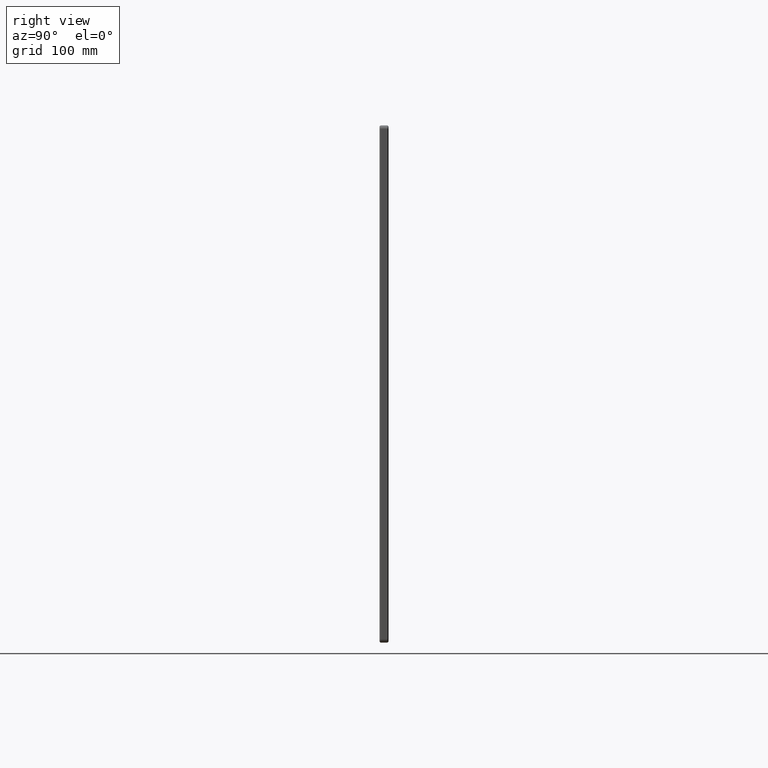
[diagram: clean part render]
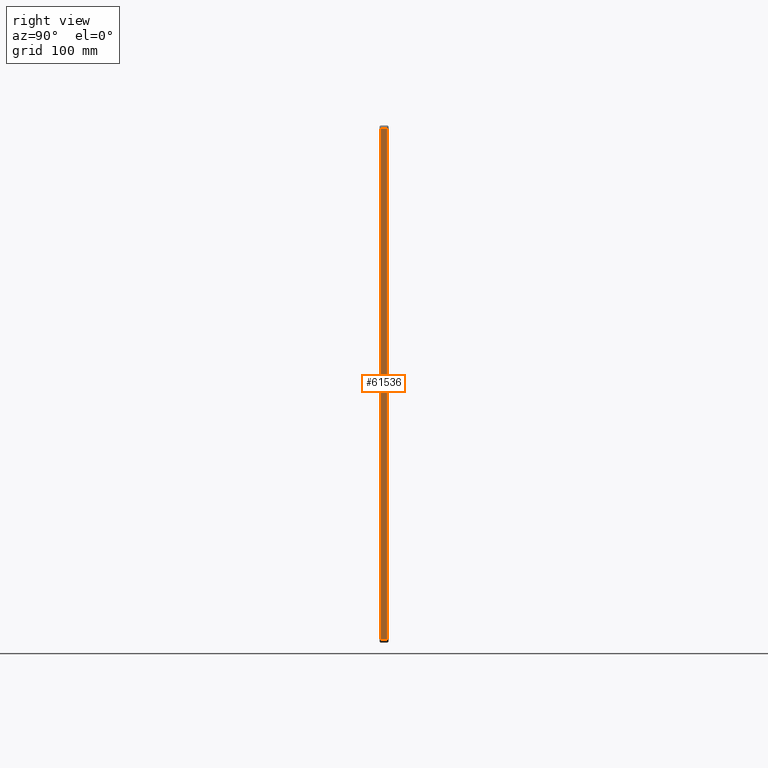
[diagram: same view with one face highlighted and labeled with its STEP entity id]
A machine part, right view. The second image highlights one B-rep face of the part: STEP entity #61536.
In plain terms, the highlighted planar face has unit normal (-1, 0, 0).
Its self-contained STEP definition (entity closure, byte-faithful):
#2959 = CARTESIAN_POINT ( 'NONE',  ( 374.9999999999998863, 11.00000000000000000, -369.9999999999999432 ) ) ;
#3078 = DIRECTION ( 'NONE',  ( -1.000000000000000000, 0.000000000000000000, 0.000000000000000000 ) ) ;
#3228 = DIRECTION ( 'NONE',  ( -0.000000000000000000, -1.000000000000000000, -0.000000000000000000 ) ) ;
#7443 = CARTESIAN_POINT ( 'NONE',  ( 374.9999999999997726, 13.00000000000000000, 369.9999999999999432 ) ) ;
#8426 = VERTEX_POINT ( 'NONE', #25319 ) ;
#9142 = VECTOR ( 'NONE', #28220, 1000.000000000000000 ) ;
#15248 = DIRECTION ( 'NONE',  ( -0.000000000000000000, -0.000000000000000000, 1.000000000000000000 ) ) ;
#16434 = VECTOR ( 'NONE', #3228, 1000.000000000000000 ) ;
#17222 = EDGE_CURVE ( 'NONE', #42443, #8426, #28068, .T. ) ;
#17273 = LINE ( 'NONE', #57902, #9142 ) ;
#18547 = FACE_OUTER_BOUND ( 'NONE', #25329, .T. ) ;
#20426 = VECTOR ( 'NONE', #15248, 1000.000000000000000 ) ;
#20713 = CARTESIAN_POINT ( 'NONE',  ( 374.9999999999997726, 11.00000000000000000, 369.9999999999999432 ) ) ;
#22753 = DIRECTION ( 'NONE',  ( 0.000000000000000000, 0.000000000000000000, 1.000000000000000000 ) ) ;
#24482 = VERTEX_POINT ( 'NONE', #51170 ) ;
#24882 = LINE ( 'NONE', #44571, #29147 ) ;
#25319 = CARTESIAN_POINT ( 'NONE',  ( 374.9999999999997726, 2.000000000000001776, 369.9999999999999432 ) ) ;
#25329 = EDGE_LOOP ( 'NONE', ( #56470, #47346, #62321, #58629 ) ) ;
#28068 = LINE ( 'NONE', #7443, #16434 ) ;
#28220 = DIRECTION ( 'NONE',  ( -0.000000000000000000, -1.000000000000000000, -0.000000000000000000 ) ) ;
#29062 = EDGE_CURVE ( 'NONE', #40286, #24482, #17273, .T. ) ;
#29147 = VECTOR ( 'NONE', #63624, 1000.000000000000000 ) ;
#30719 = CARTESIAN_POINT ( 'NONE',  ( 374.9999999999997726, 11.00000000000000000, 369.9999999999999432 ) ) ;
#32090 = AXIS2_PLACEMENT_3D ( 'NONE', #57937, #3078, #22753 ) ;
#38245 = PLANE ( 'NONE',  #32090 ) ;
#39802 = LINE ( 'NONE', #20713, #20426 ) ;
#40286 = VERTEX_POINT ( 'NONE', #2959 ) ;
#42443 = VERTEX_POINT ( 'NONE', #30719 ) ;
#44571 = CARTESIAN_POINT ( 'NONE',  ( 374.9999999999997726, 2.000000000000000000, -369.9999999999999432 ) ) ;
#46093 = EDGE_CURVE ( 'NONE', #40286, #42443, #39802, .T. ) ;
#47346 = ORIENTED_EDGE ( 'NONE', *, *, #54698, .T. ) ;
#51170 = CARTESIAN_POINT ( 'NONE',  ( 374.9999999999998863, 2.000000000000003553, -369.9999999999999432 ) ) ;
#54698 = EDGE_CURVE ( 'NONE', #8426, #24482, #24882, .T. ) ;
#56470 = ORIENTED_EDGE ( 'NONE', *, *, #17222, .T. ) ;
#57902 = CARTESIAN_POINT ( 'NONE',  ( 374.9999999999998863, 13.00000000000000000, -369.9999999999999432 ) ) ;
#57937 = CARTESIAN_POINT ( 'NONE',  ( 374.9999999999997726, 13.00000000000000000, -369.9999999999999432 ) ) ;
#58629 = ORIENTED_EDGE ( 'NONE', *, *, #46093, .T. ) ;
#61536 = ADVANCED_FACE ( 'NONE', ( #18547 ), #38245, .F. ) ;
#62321 = ORIENTED_EDGE ( 'NONE', *, *, #29062, .F. ) ;
#63624 = DIRECTION ( 'NONE',  ( 0.000000000000000000, 0.000000000000000000, -1.000000000000000000 ) ) ;